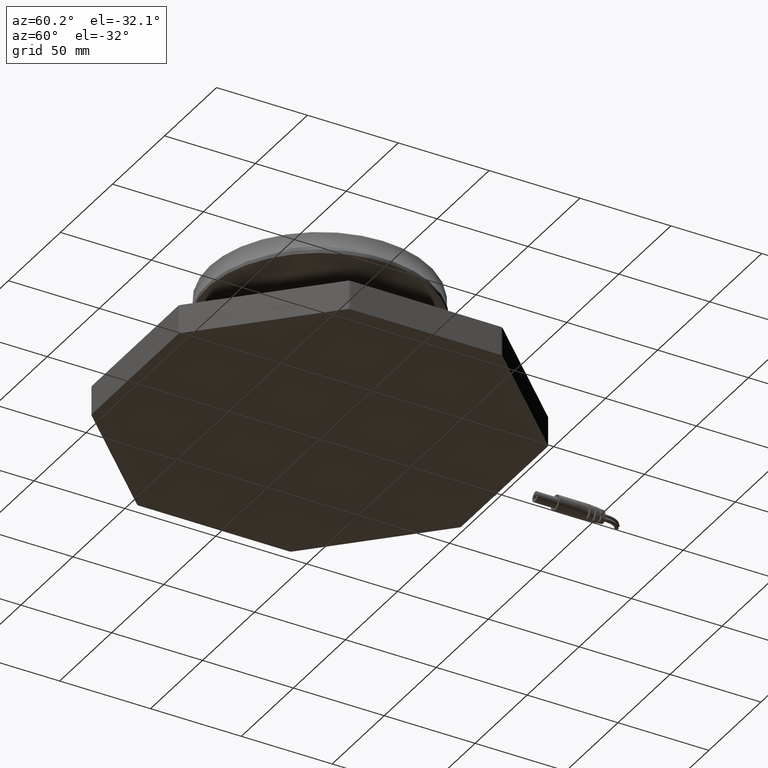
[diagram: clean part render]
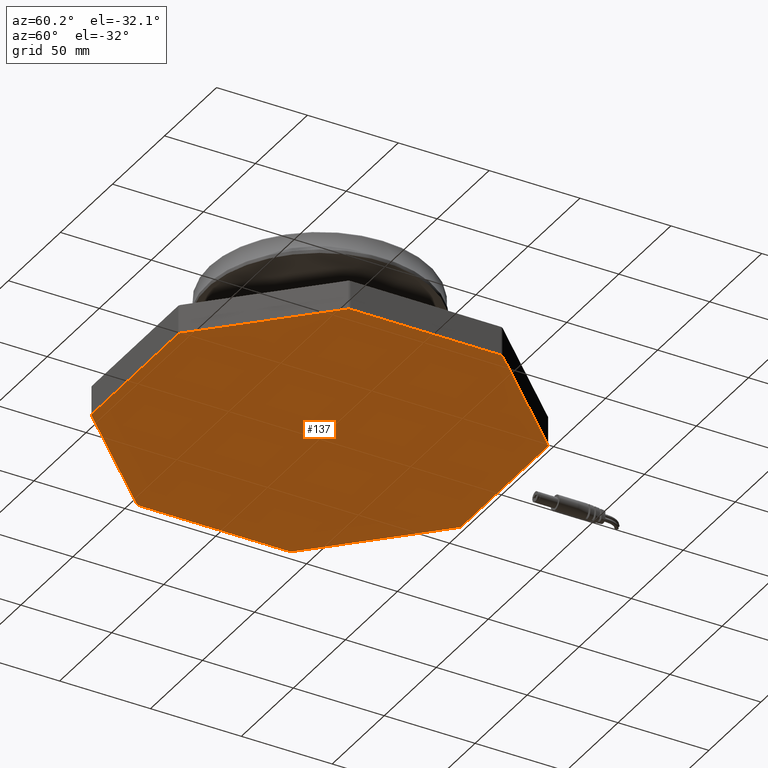
[diagram: same view with one face highlighted and labeled with its STEP entity id]
A machine part, auxiliary view. The second image highlights one B-rep face of the part: STEP entity #137.
In plain terms, the highlighted planar face has unit normal (0, 0, -1).
Its self-contained STEP definition (entity closure, byte-faithful):
#54=PLANE('',#2134);
#137=ADVANCED_FACE('',(#271),#54,.T.);
#271=FACE_OUTER_BOUND('',#408,.T.);
#408=EDGE_LOOP('',(#634,#635,#636,#637,#638,#639,#640,#641,#642,#643,#644,
#645,#646,#647,#648,#649));
#634=ORIENTED_EDGE('',*,*,#1249,.T.);
#635=ORIENTED_EDGE('',*,*,#1248,.T.);
#636=ORIENTED_EDGE('',*,*,#1243,.T.);
#637=ORIENTED_EDGE('',*,*,#1250,.T.);
#638=ORIENTED_EDGE('',*,*,#1252,.T.);
#639=ORIENTED_EDGE('',*,*,#1251,.T.);
#640=ORIENTED_EDGE('',*,*,#1244,.T.);
#641=ORIENTED_EDGE('',*,*,#1253,.T.);
#642=ORIENTED_EDGE('',*,*,#1255,.T.);
#643=ORIENTED_EDGE('',*,*,#1254,.T.);
#644=ORIENTED_EDGE('',*,*,#1245,.T.);
#645=ORIENTED_EDGE('',*,*,#1256,.T.);
#646=ORIENTED_EDGE('',*,*,#1258,.T.);
#647=ORIENTED_EDGE('',*,*,#1257,.T.);
#648=ORIENTED_EDGE('',*,*,#1246,.T.);
#649=ORIENTED_EDGE('',*,*,#1247,.T.);
#1243=EDGE_CURVE('',#1889,#1890,#1652,.T.);
#1244=EDGE_CURVE('',#1893,#1894,#1653,.T.);
#1245=EDGE_CURVE('',#1897,#1898,#1654,.T.);
#1246=EDGE_CURVE('',#1901,#1902,#1655,.T.);
#1247=EDGE_CURVE('',#1902,#1887,#1656,.T.);
#1248=EDGE_CURVE('',#1888,#1889,#1657,.T.);
#1249=EDGE_CURVE('',#1887,#1888,#1658,.T.);
#1250=EDGE_CURVE('',#1890,#1891,#1659,.T.);
#1251=EDGE_CURVE('',#1892,#1893,#1660,.T.);
#1252=EDGE_CURVE('',#1891,#1892,#1661,.T.);
#1253=EDGE_CURVE('',#1894,#1895,#1662,.T.);
#1254=EDGE_CURVE('',#1896,#1897,#1663,.T.);
#1255=EDGE_CURVE('',#1895,#1896,#1664,.T.);
#1256=EDGE_CURVE('',#1898,#1899,#1665,.T.);
#1257=EDGE_CURVE('',#1900,#1901,#1666,.T.);
#1258=EDGE_CURVE('',#1899,#1900,#1667,.T.);
#1652=B_SPLINE_CURVE_WITH_KNOTS('',1,(#4136,#4137),.UNSPECIFIED.,.F.,.F.,
(2,2),(-83.4226114619414,-0.828427124746209),.UNSPECIFIED.);
#1653=B_SPLINE_CURVE_WITH_KNOTS('',1,(#4138,#4139),.UNSPECIFIED.,.F.,.F.,
(2,2),(-83.4226114619414,-0.828427124746209),.UNSPECIFIED.);
#1654=B_SPLINE_CURVE_WITH_KNOTS('',1,(#4140,#4141),.UNSPECIFIED.,.F.,.F.,
(2,2),(-83.4226114619414,-0.828427124746209),.UNSPECIFIED.);
#1655=B_SPLINE_CURVE_WITH_KNOTS('',1,(#4142,#4143),.UNSPECIFIED.,.F.,.F.,
(2,2),(-83.4226114619414,-0.828427124746209),.UNSPECIFIED.);
#1656=B_SPLINE_CURVE_WITH_KNOTS('',5,(#4144,#4145,#4146,#4147,#4148,#4149),
 .UNSPECIFIED.,.F.,.F.,(6,6),(3.92699081698723,4.71238898038469),
 .UNSPECIFIED.);
#1657=B_SPLINE_CURVE_WITH_KNOTS('',5,(#4150,#4151,#4152,#4153,#4154,#4155),
 .UNSPECIFIED.,.F.,.F.,(6,6),(3.92699081698723,4.71238898038469),
 .UNSPECIFIED.);
#1658=B_SPLINE_CURVE_WITH_KNOTS('',1,(#4156,#4157),.UNSPECIFIED.,.F.,.F.,
(2,2),(-83.4226114619414,-0.828427124746209),.UNSPECIFIED.);
#1659=B_SPLINE_CURVE_WITH_KNOTS('',5,(#4158,#4159,#4160,#4161,#4162,#4163),
 .UNSPECIFIED.,.F.,.F.,(6,6),(3.92699081698723,4.71238898038469),
 .UNSPECIFIED.);
#1660=B_SPLINE_CURVE_WITH_KNOTS('',5,(#4164,#4165,#4166,#4167,#4168,#4169),
 .UNSPECIFIED.,.F.,.F.,(6,6),(3.92699081698723,4.71238898038469),
 .UNSPECIFIED.);
#1661=B_SPLINE_CURVE_WITH_KNOTS('',1,(#4170,#4171),.UNSPECIFIED.,.F.,.F.,
(2,2),(-83.4226114619414,-0.828427124746209),.UNSPECIFIED.);
#1662=B_SPLINE_CURVE_WITH_KNOTS('',5,(#4172,#4173,#4174,#4175,#4176,#4177),
 .UNSPECIFIED.,.F.,.F.,(6,6),(3.92699081698723,4.71238898038469),
 .UNSPECIFIED.);
#1663=B_SPLINE_CURVE_WITH_KNOTS('',5,(#4178,#4179,#4180,#4181,#4182,#4183),
 .UNSPECIFIED.,.F.,.F.,(6,6),(3.92699081698723,4.71238898038469),
 .UNSPECIFIED.);
#1664=B_SPLINE_CURVE_WITH_KNOTS('',1,(#4184,#4185),.UNSPECIFIED.,.F.,.F.,
(2,2),(-83.4226114619414,-0.828427124746209),.UNSPECIFIED.);
#1665=B_SPLINE_CURVE_WITH_KNOTS('',5,(#4186,#4187,#4188,#4189,#4190,#4191),
 .UNSPECIFIED.,.F.,.F.,(6,6),(3.92699081698723,4.71238898038469),
 .UNSPECIFIED.);
#1666=B_SPLINE_CURVE_WITH_KNOTS('',5,(#4192,#4193,#4194,#4195,#4196,#4197),
 .UNSPECIFIED.,.F.,.F.,(6,6),(3.92699081698723,4.71238898038469),
 .UNSPECIFIED.);
#1667=B_SPLINE_CURVE_WITH_KNOTS('',1,(#4198,#4199),.UNSPECIFIED.,.F.,.F.,
(2,2),(-83.4226114619414,-0.828427124746209),.UNSPECIFIED.);
#1887=VERTEX_POINT('',#3835);
#1888=VERTEX_POINT('',#3836);
#1889=VERTEX_POINT('',#3837);
#1890=VERTEX_POINT('',#3838);
#1891=VERTEX_POINT('',#3839);
#1892=VERTEX_POINT('',#3840);
#1893=VERTEX_POINT('',#3841);
#1894=VERTEX_POINT('',#3842);
#1895=VERTEX_POINT('',#3843);
#1896=VERTEX_POINT('',#3844);
#1897=VERTEX_POINT('',#3845);
#1898=VERTEX_POINT('',#3846);
#1899=VERTEX_POINT('',#3847);
#1900=VERTEX_POINT('',#3848);
#1901=VERTEX_POINT('',#3849);
#1902=VERTEX_POINT('',#3850);
#2134=AXIS2_PLACEMENT_3D('',#3315,#2191,$);
#2191=DIRECTION('',(0.,0.,-1.));
#3315=CARTESIAN_POINT('',(1.4210854715202E-14,146.702029679211,0.));
#3835=CARTESIAN_POINT('',(41.2970921685976,-101.7,0.));
#3836=CARTESIAN_POINT('',(-41.2970921685975,-101.7,0.));
#3837=CARTESIAN_POINT('',(-42.7113057309707,-101.114213562373,0.));
#3838=CARTESIAN_POINT('',(-101.114213562373,-42.7113057309707,0.));
#3839=CARTESIAN_POINT('',(-101.7,-41.2970921685976,0.));
#3840=CARTESIAN_POINT('',(-101.7,41.2970921685975,0.));
#3841=CARTESIAN_POINT('',(-101.114213562373,42.7113057309707,0.));
#3842=CARTESIAN_POINT('',(-42.7113057309707,101.114213562373,0.));
#3843=CARTESIAN_POINT('',(-41.2970921685976,101.7,0.));
#3844=CARTESIAN_POINT('',(41.2970921685975,101.7,0.));
#3845=CARTESIAN_POINT('',(42.7113057309707,101.114213562373,0.));
#3846=CARTESIAN_POINT('',(101.114213562373,42.7113057309707,0.));
#3847=CARTESIAN_POINT('',(101.7,41.2970921685976,0.));
#3848=CARTESIAN_POINT('',(101.7,-41.2970921685975,0.));
#3849=CARTESIAN_POINT('',(101.114213562373,-42.7113057309707,0.));
#3850=CARTESIAN_POINT('',(42.7113057309707,-101.114213562373,0.));
#4136=CARTESIAN_POINT('',(-42.7113057309707,-101.114213562373,0.));
#4137=CARTESIAN_POINT('',(-101.114213562373,-42.7113057309707,0.));
#4138=CARTESIAN_POINT('',(-101.114213562373,42.7113057309707,0.));
#4139=CARTESIAN_POINT('',(-42.7113057309707,101.114213562373,0.));
#4140=CARTESIAN_POINT('',(42.7113057309707,101.114213562373,0.));
#4141=CARTESIAN_POINT('',(101.114213562373,42.7113057309707,0.));
#4142=CARTESIAN_POINT('',(101.114213562373,-42.7113057309707,0.));
#4143=CARTESIAN_POINT('',(42.7113057309707,-101.114213562373,0.));
#4144=CARTESIAN_POINT('',(42.7113057309707,-101.114213562373,0.));
#4145=CARTESIAN_POINT('',(42.4891598472719,-101.336354103064,0.));
#4146=CARTESIAN_POINT('',(42.2234072890813,-101.514899536068,0.));
#4147=CARTESIAN_POINT('',(41.9254162345144,-101.638331472336,0.));
#4148=CARTESIAN_POINT('',(41.6112501120728,-101.699996221923,0.));
#4149=CARTESIAN_POINT('',(41.2970921685976,-101.7,0.));
#4150=CARTESIAN_POINT('',(-41.2970921685975,-101.7,0.));
#4151=CARTESIAN_POINT('',(-41.6112501120728,-101.699996221923,0.));
#4152=CARTESIAN_POINT('',(-41.9254162345142,-101.638331472336,0.));
#4153=CARTESIAN_POINT('',(-42.2234072890814,-101.514899536069,0.));
#4154=CARTESIAN_POINT('',(-42.4891598472718,-101.336354103064,0.));
#4155=CARTESIAN_POINT('',(-42.7113057309707,-101.114213562373,0.));
#4156=CARTESIAN_POINT('',(41.2970921685976,-101.7,0.));
#4157=CARTESIAN_POINT('',(-41.2970921685975,-101.7,0.));
#4158=CARTESIAN_POINT('',(-101.114213562373,-42.7113057309707,0.));
#4159=CARTESIAN_POINT('',(-101.336354103064,-42.4891598472719,0.));
#4160=CARTESIAN_POINT('',(-101.514899536068,-42.2234072890813,0.));
#4161=CARTESIAN_POINT('',(-101.638331472336,-41.9254162345144,0.));
#4162=CARTESIAN_POINT('',(-101.699996221923,-41.6112501120728,0.));
#4163=CARTESIAN_POINT('',(-101.7,-41.2970921685976,0.));
#4164=CARTESIAN_POINT('',(-101.7,41.2970921685975,0.));
#4165=CARTESIAN_POINT('',(-101.699996221923,41.6112501120728,0.));
#4166=CARTESIAN_POINT('',(-101.638331472336,41.9254162345142,0.));
#4167=CARTESIAN_POINT('',(-101.514899536069,42.2234072890814,0.));
#4168=CARTESIAN_POINT('',(-101.336354103064,42.4891598472718,0.));
#4169=CARTESIAN_POINT('',(-101.114213562373,42.7113057309707,0.));
#4170=CARTESIAN_POINT('',(-101.7,-41.2970921685976,0.));
#4171=CARTESIAN_POINT('',(-101.7,41.2970921685975,0.));
#4172=CARTESIAN_POINT('',(-42.7113057309707,101.114213562373,0.));
#4173=CARTESIAN_POINT('',(-42.4891598472719,101.336354103064,0.));
#4174=CARTESIAN_POINT('',(-42.2234072890813,101.514899536068,0.));
#4175=CARTESIAN_POINT('',(-41.9254162345144,101.638331472336,0.));
#4176=CARTESIAN_POINT('',(-41.6112501120728,101.699996221923,0.));
#4177=CARTESIAN_POINT('',(-41.2970921685976,101.7,0.));
#4178=CARTESIAN_POINT('',(41.2970921685975,101.7,0.));
#4179=CARTESIAN_POINT('',(41.6112501120728,101.699996221923,0.));
#4180=CARTESIAN_POINT('',(41.9254162345142,101.638331472336,0.));
#4181=CARTESIAN_POINT('',(42.2234072890814,101.514899536069,0.));
#4182=CARTESIAN_POINT('',(42.4891598472718,101.336354103064,0.));
#4183=CARTESIAN_POINT('',(42.7113057309707,101.114213562373,0.));
#4184=CARTESIAN_POINT('',(-41.2970921685976,101.7,0.));
#4185=CARTESIAN_POINT('',(41.2970921685975,101.7,0.));
#4186=CARTESIAN_POINT('',(101.114213562373,42.7113057309707,0.));
#4187=CARTESIAN_POINT('',(101.336354103064,42.4891598472719,0.));
#4188=CARTESIAN_POINT('',(101.514899536068,42.2234072890813,0.));
#4189=CARTESIAN_POINT('',(101.638331472336,41.9254162345144,0.));
#4190=CARTESIAN_POINT('',(101.699996221923,41.6112501120728,0.));
#4191=CARTESIAN_POINT('',(101.7,41.2970921685976,0.));
#4192=CARTESIAN_POINT('',(101.7,-41.2970921685975,0.));
#4193=CARTESIAN_POINT('',(101.699996221923,-41.6112501120728,0.));
#4194=CARTESIAN_POINT('',(101.638331472336,-41.9254162345142,0.));
#4195=CARTESIAN_POINT('',(101.514899536069,-42.2234072890814,0.));
#4196=CARTESIAN_POINT('',(101.336354103064,-42.4891598472718,0.));
#4197=CARTESIAN_POINT('',(101.114213562373,-42.7113057309707,0.));
#4198=CARTESIAN_POINT('',(101.7,41.2970921685976,0.));
#4199=CARTESIAN_POINT('',(101.7,-41.2970921685975,0.));